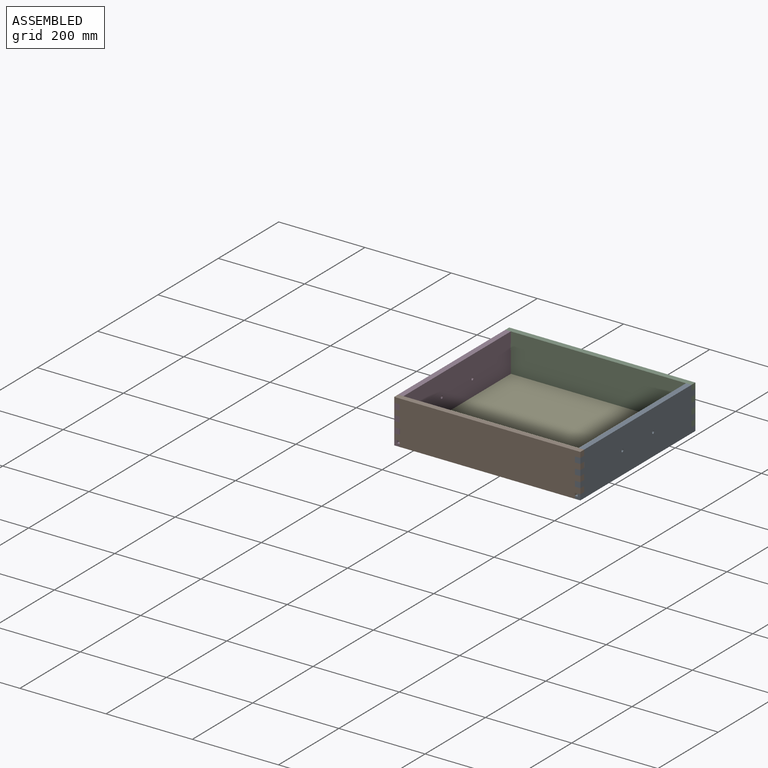
[diagram: assembled view]
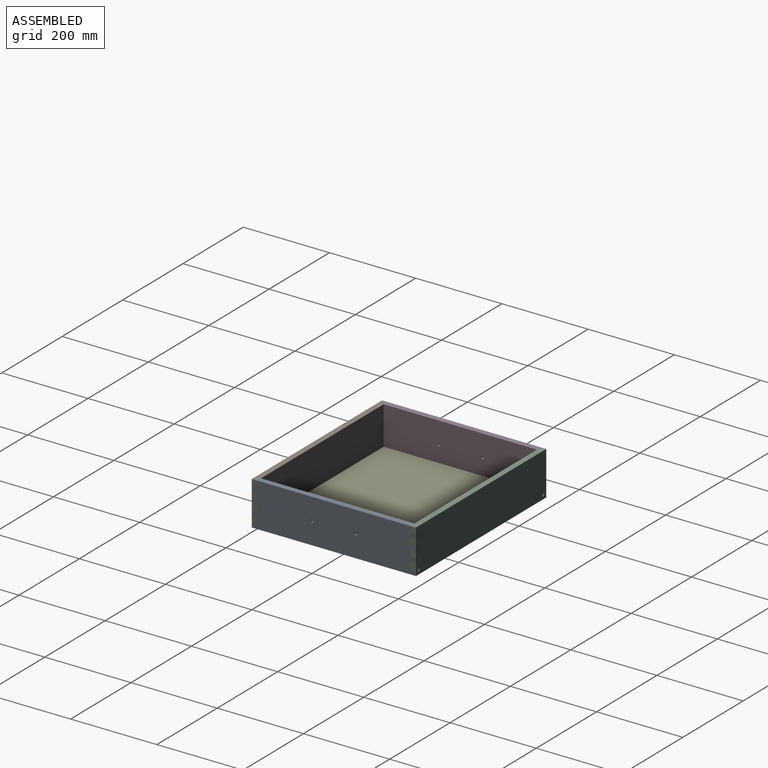
[diagram: assembled view, second angle]
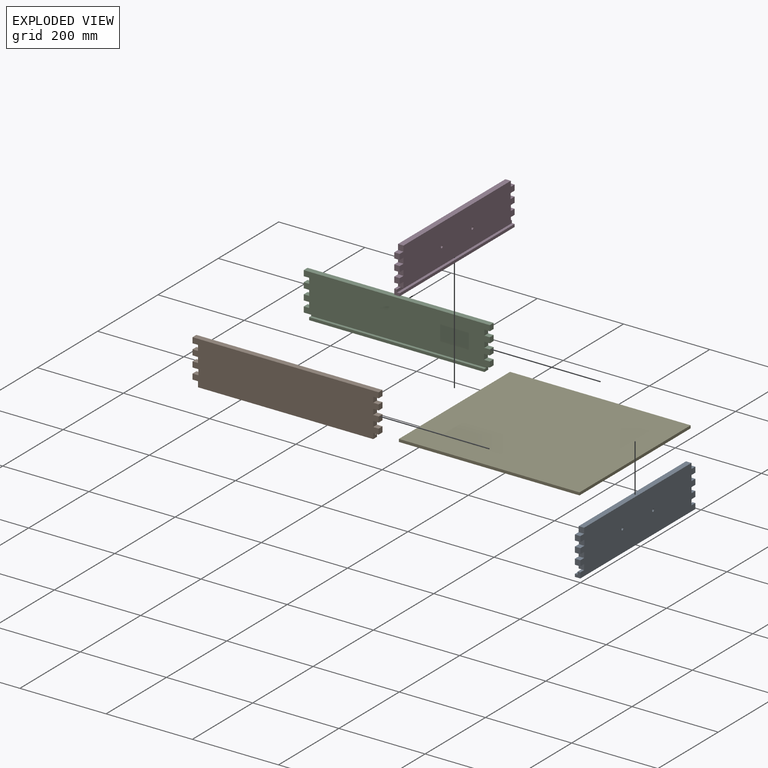
[diagram: exploded view]
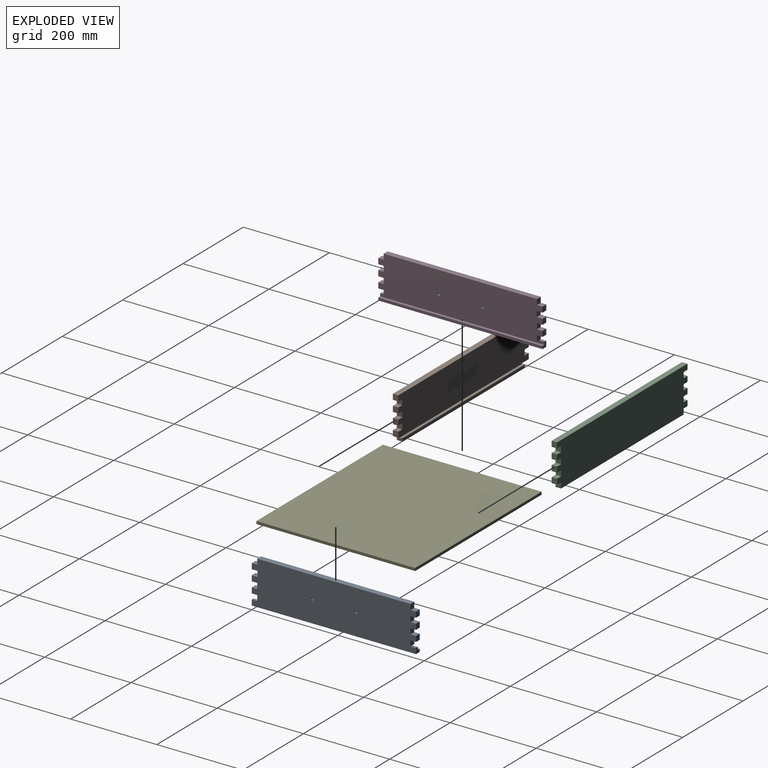
[diagram: exploded view, second angle]
ASSEMBLY  parts=5 mates=4
PART A: 40 faces, bbox 12.7x381x101.6 mm
  f0: plane 12.7x6.35mm, normal (0,0,1), area 80.6mm2, adj f10,f11,f35,f39
  f1: plane 381x6.35mm, normal (-1,0,0), area 2419.3mm2, adj f11,f12,f13,f38
  f2: plane 12.7x12.7mm, normal (0,-1,0), area 161.3mm2, adj f3,f33,f35,f36
  f3: plane 13.41x12.7mm, normal (0,0,1), area 170.3mm2, adj f2,f4,f35,f36
  f4: plane 12.7x12.7mm, normal (0,-1,0), area 161.3mm2, adj f3,f5,f35,f36
  f5: plane 12.7x12.7mm, normal (0,0,-1), area 161.3mm2, adj f4,f6,f35,f36
  f6: plane 12.7x12.7mm, normal (0,-1,0), area 161.3mm2, adj f5,f7,f35,f36
  f7: plane 12.7x12.7mm, normal (0,0,1), area 161.3mm2, adj f6,f8,f35,f36
  f8: plane 12.7x12.7mm, normal (0,-1,0), area 161.3mm2, adj f7,f9,f35,f36
  f9: plane 12.7x12.7mm, normal (0,0,-1), area 161.3mm2, adj f8,f10,f35,f36
  f10: plane 12.7x12.7mm, normal (0,-1,0), area 161.3mm2, adj f0,f9,f35,f36,f37
  f11: plane 12.7x12.7mm, normal (0,-1,0), area 121mm2, adj f0,f1,f12,f35,f38,f39
  f12: plane 381x12.7mm, normal (0,0,-1), area 4838.7mm2, adj f1,f11,f13,f35
  f13: plane 12.7x12.7mm, normal (0,1,0), area 121mm2, adj f1,f12,f14,f35,f38,f39
  f14: plane 12.7x6.35mm, normal (0,0,1), area 80.6mm2, adj f13,f15,f35,f39
  f15: plane 12.7x12.7mm, normal (0,1,0), area 161.3mm2, adj f14,f16,f35,f36,f37
  f16: plane 12.7x12.7mm, normal (0,0,-1), area 161.3mm2, adj f15,f17,f35,f36
  f17: plane 12.7x12.7mm, normal (0,1,0), area 161.3mm2, adj f16,f18,f35,f36
  f18: plane 12.7x12.7mm, normal (0,0,1), area 161.3mm2, adj f17,f19,f35,f36
  f19: plane 12.7x12.7mm, normal (0,1,0), area 161.3mm2, adj f18,f20,f35,f36
  f20: plane 12.7x12.7mm, normal (0,0,-1), area 161.3mm2, adj f19,f21,f35,f36
  f21: plane 12.7x12.7mm, normal (0,1,0), area 161.3mm2, adj f20,f22,f35,f36
  f22: plane 12.7x12.7mm, normal (0,0,1), area 161.3mm2, adj f21,f23,f35,f36
  f23: plane 12.7x12.7mm, normal (0,1,0), area 161.3mm2, adj f22,f24,f35,f36
  f24: plane 12.7x12.7mm, normal (0,0,-1), area 161.3mm2, adj f23,f25,f35,f36
  f25: plane 12.7x12.7mm, normal (0,1,0), area 161.3mm2, adj f24,f26,f35,f36
  f26: plane 12.7x12.7mm, normal (0,0,1), area 161.3mm2, adj f25,f27,f35,f36
  f27: plane 12.7x12.7mm, normal (0,1,0), area 161.3mm2, adj f26,f28,f35,f36
  f28: plane 355.6x12.7mm, normal (0,0,1), area 4516.1mm2, adj f27,f29,f35,f36
  f29: plane 12.7x12.7mm, normal (0,-1,0), area 161.3mm2, adj f28,f30,f35,f36
  f30: plane 12.7x12.7mm, normal (0,0,1), area 161.3mm2, adj f29,f31,f35,f36
  f31: plane 12.7x12.7mm, normal (0,-1,0), area 161.3mm2, adj f30,f33,f35,f36
  f32: cylinder r=3.17mm len=12.7mm, axis (-1,0,0), area 253.4mm2, adj f35,f36
  f33: plane 13.41x12.7mm, normal (0,0,-1), area 170.3mm2, adj f2,f31,f35,f36
  f34: cylinder r=3.17mm len=12.7mm, axis (-1,0,0), area 253.4mm2, adj f35,f36
  f35: plane 381x101.6mm, normal (1,0,0), area 37347mm2, adj f0,f2,f3,f4,f5,f6,f7,f8
  f36: plane 381x88.9mm, normal (-1,0,0), area 32508.3mm2, adj f2,f3,f4,f5,f6,f7,f8,f9
  f37: plane 355.6x6.35mm, normal (0,0,-1), area 2258.1mm2, adj f10,f15,f36,f39
  f38: plane 381x6.35mm, normal (0,0,1), area 2419.3mm2, adj f1,f11,f13,f39
  f39: plane 381x6.35mm, normal (-1,0,0), area 2419.3mm2, adj f0,f11,f13,f14,f37,f38
PART B: 36 faces, bbox 12.7x431.8x101.6 mm
  f0: plane 406.4x6.35mm, normal (1,0,0), area 2580.6mm2, adj f26,f27,f28,f35
  f1: plane 12.7x12.7mm, normal (0,-1,0), area 161.3mm2, adj f2,f31,f32,f33
  f2: plane 13.41x12.7mm, normal (0,0,1), area 170.3mm2, adj f1,f3,f32,f33
  f3: plane 12.7x12.7mm, normal (0,-1,0), area 161.3mm2, adj f2,f4,f32,f33
  f4: plane 12.7x12.7mm, normal (0,0,-1), area 161.3mm2, adj f3,f5,f32,f33
  f5: plane 12.7x12.7mm, normal (0,-1,0), area 161.3mm2, adj f4,f6,f32,f33
  f6: plane 12.7x12.7mm, normal (0,0,1), area 161.3mm2, adj f5,f7,f32,f33
  f7: plane 12.7x12.7mm, normal (0,-1,0), area 161.3mm2, adj f6,f8,f32,f33
  f8: plane 12.74x12.7mm, normal (0,0,-1), area 161.8mm2, adj f7,f9,f32,f33
  f9: plane 12.7x12.7mm, normal (0,-1,0), area 161.3mm2, adj f8,f10,f32,f33
  f10: plane 12.74x12.7mm, normal (0,0,1), area 161.8mm2, adj f9,f11,f32,f33
  f11: plane 12.7x12.7mm, normal (0,-1,0), area 161.3mm2, adj f10,f12,f32,f33
  f12: plane 431.8x12.7mm, normal (0,0,-1), area 5483.9mm2, adj f11,f13,f32,f33
  f13: plane 12.7x12.7mm, normal (0,1,0), area 161.3mm2, adj f12,f14,f32,f33
  f14: plane 12.7x12.7mm, normal (0,0,1), area 161.3mm2, adj f13,f15,f32,f33
  f15: plane 12.7x12.7mm, normal (0,1,0), area 161.3mm2, adj f14,f16,f32,f33
  f16: plane 12.7x12.7mm, normal (0,0,-1), area 161.3mm2, adj f15,f17,f32,f33
  f17: plane 12.7x12.7mm, normal (0,1,0), area 161.3mm2, adj f16,f18,f32,f33
  f18: plane 12.7x12.7mm, normal (0,0,1), area 161.3mm2, adj f17,f19,f32,f33
  f19: plane 12.7x12.7mm, normal (0,1,0), area 161.3mm2, adj f18,f20,f32,f33
  f20: plane 12.7x12.7mm, normal (0,0,-1), area 161.3mm2, adj f19,f21,f32,f33
  f21: plane 12.7x12.7mm, normal (0,1,0), area 161.3mm2, adj f20,f22,f32,f33
  f22: plane 12.7x12.7mm, normal (0,0,1), area 161.3mm2, adj f21,f23,f32,f33
  f23: plane 12.7x12.7mm, normal (0,1,0), area 161.3mm2, adj f22,f24,f32,f33
  f24: plane 12.7x12.7mm, normal (0,0,-1), area 161.3mm2, adj f23,f25,f32,f33
  f25: plane 12.7x12.7mm, normal (0,1,0), area 161.3mm2, adj f24,f29,f32,f33
  f26: plane 12.7x12.7mm, normal (0,1,0), area 121mm2, adj f0,f27,f29,f33,f34,f35
  f27: plane 406.4x12.7mm, normal (0,0,1), area 5161.3mm2, adj f0,f26,f28,f33
  f28: plane 12.7x12.7mm, normal (0,-1,0), area 121mm2, adj f0,f27,f29,f33,f34,f35
  f29: plane 431.8x12.7mm, normal (0,0,1), area 2903.2mm2, adj f25,f26,f28,f30,f32,f33,f34
  f30: plane 12.7x12.7mm, normal (0,-1,0), area 161.3mm2, adj f29,f31,f32,f33
  f31: plane 13.41x12.7mm, normal (0,0,-1), area 170.3mm2, adj f1,f30,f32,f33
  f32: plane 431.8x88.9mm, normal (1,0,0), area 37409.8mm2, adj f1,f2,f3,f4,f5,f6,f7,f8
  f33: plane 431.8x101.6mm, normal (-1,0,0), area 42571.1mm2, adj f1,f2,f3,f4,f5,f6,f7,f8
  f34: plane 406.4x6.35mm, normal (1,0,0), area 2580.6mm2, adj f26,f28,f29,f35
  f35: plane 406.4x6.35mm, normal (0,0,-1), area 2580.6mm2, adj f0,f26,f28,f34
PART C: same geometry as B
PART D: same geometry as A
PART E: 6 faces, bbox 419.1x368.3x6.4 mm
  f0: plane 419.1x6.35mm, normal (0,-1,0), area 2661.3mm2, adj f1,f3,f4,f5
  f1: plane 419.1x368.3mm, normal (0,0,-1), area 154354.5mm2, adj f0,f2,f4,f5
  f2: plane 419.1x6.35mm, normal (0,1,0), area 2661.3mm2, adj f1,f3,f4,f5
  f3: plane 419.1x368.3mm, normal (0,0,1), area 154354.5mm2, adj f0,f2,f4,f5
  f4: plane 368.3x6.35mm, normal (1,0,0), area 2338.7mm2, adj f0,f1,f2,f3
  f5: plane 368.3x6.35mm, normal (-1,0,0), area 2338.7mm2, adj f0,f1,f2,f3
PLACE A t=(-12.7,381,0)mm
PLACE B rot(axis=(0.71,0.71,0),180deg) t=(0,0,101.6)mm
PLACE C rot(axis=(0.71,-0.71,0),180deg) t=(-431.8,381,101.6)mm
PLACE D rot(axis=(0,0,1),180deg) t=(-419.1,0,0)mm
PLACE E t=(-425.45,-1.12,6.35)mm
MATE fastened A.f26 <-> C.f10  axis (0,0,1) through (0,381,88.9)mm
MATE fastened C.f34 <-> E.f2  axis (0,-1,0) through (-215.9,374.65,9.52)mm
MATE fastened A.f30 <-> B.f14  axis (0,0,1) through (0,0,88.9)mm
MATE fastened B.f10 <-> D.f26  axis (0,0,-1) through (-431.8,12.7,88.9)mm
